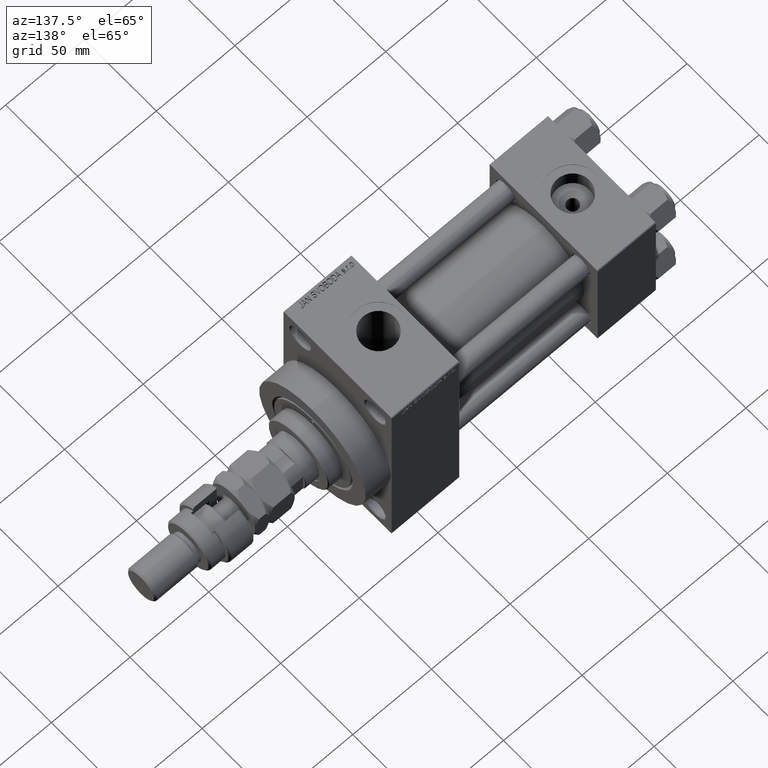
[diagram: clean part render]
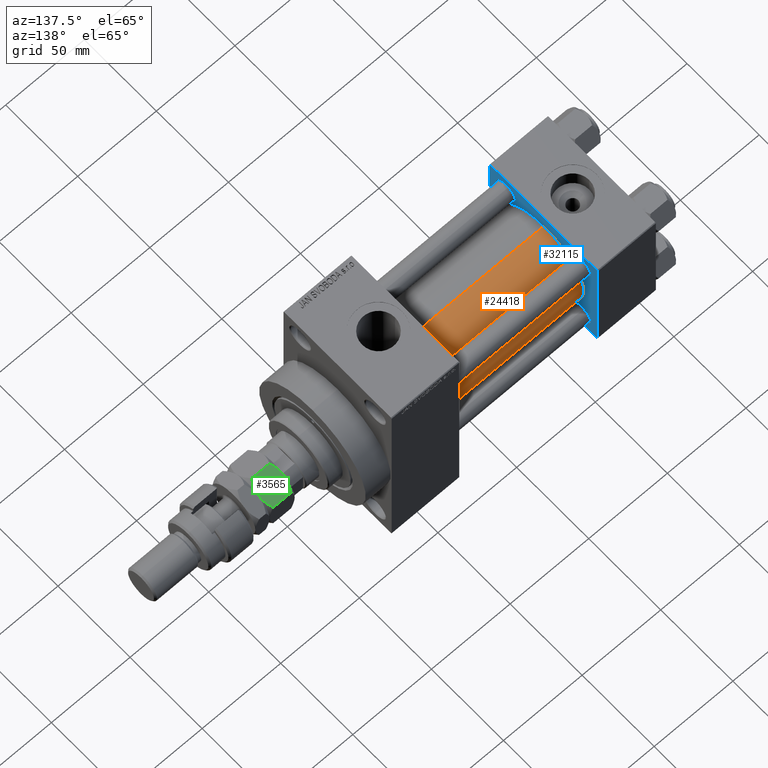
[diagram: same view with three faces highlighted in distinct colors, each labeled with its STEP entity id]
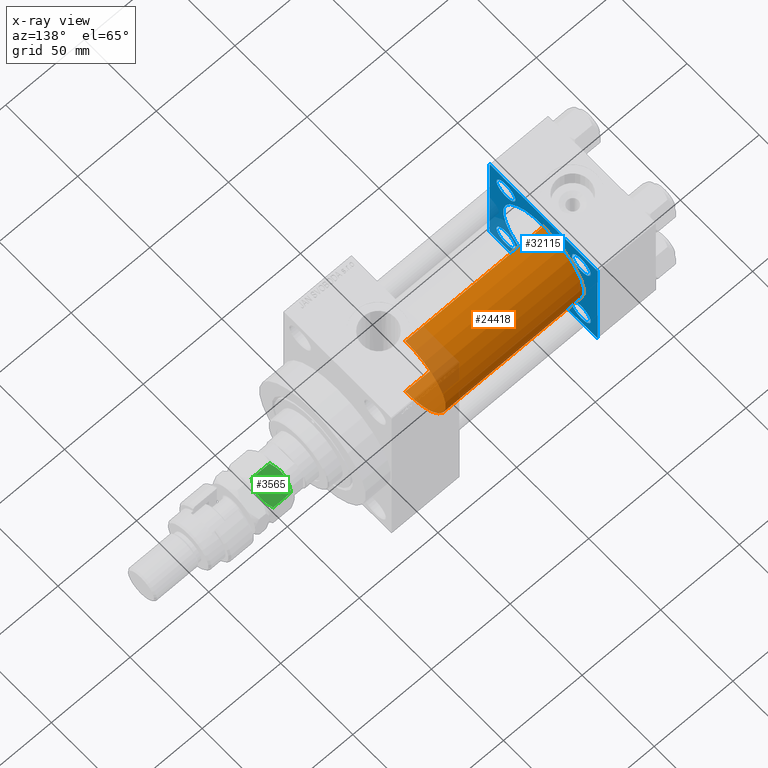
[diagram: x-ray of the same camera — body ghosted, the three highlighted faces saturated]
A machine part, auxiliary view with three faces highlighted in distinct colors.
The next image is the same camera in x-ray (body ghosted, the three faces saturated) — at least one of them is partly hidden behind the body in this view.
Their STEP definitions:

[orange] entity #24418 — the highlighted cylindrical surface (partial cylindrical patch) has radius 28 mm, axis along (-1, -0, -0).
#183 = AXIS2_PLACEMENT_3D ( 'NONE', #34662, #16320, #31587 ) ;
#1959 = EDGE_CURVE ( 'NONE', #23058, #6638, #30447, .T. ) ;
#2136 = VERTEX_POINT ( 'NONE', #24434 ) ;
#2477 = CARTESIAN_POINT ( 'NONE',  ( 37.00000000000000711, 8.269258236473784371E-16, -28.00000000000000000 ) ) ;
#2872 = DIRECTION ( 'NONE',  ( 0.000000000000000000, 0.000000000000000000, 1.000000000000000000 ) ) ;
#4397 = LINE ( 'NONE', #27033, #18025 ) ;
#5605 = ORIENTED_EDGE ( 'NONE', *, *, #42466, .F. ) ;
#5900 = CYLINDRICAL_SURFACE ( 'NONE', #15718, 28.00000000000000000 ) ;
#6194 = EDGE_LOOP ( 'NONE', ( #5605, #32483, #37358, #13867 ) ) ;
#6638 = VERTEX_POINT ( 'NONE', #44035 ) ;
#11540 = CARTESIAN_POINT ( 'NONE',  ( 125.0000000000000000, 8.269258236473784371E-16, -28.00000000000000000 ) ) ;
#11629 = VECTOR ( 'NONE', #37035, 1000.000000000000000 ) ;
#13272 = FACE_OUTER_BOUND ( 'NONE', #6194, .T. ) ;
#13867 = ORIENTED_EDGE ( 'NONE', *, *, #23021, .F. ) ;
#15589 = DIRECTION ( 'NONE',  ( -1.000000000000000000, -0.000000000000000000, -0.000000000000000000 ) ) ;
#15718 = AXIS2_PLACEMENT_3D ( 'NONE', #36909, #33350, #2872 ) ;
#15808 = AXIS2_PLACEMENT_3D ( 'NONE', #48891, #29318, #36946 ) ;
#16320 = DIRECTION ( 'NONE',  ( 1.000000000000000000, 0.000000000000000000, 0.000000000000000000 ) ) ;
#18025 = VECTOR ( 'NONE', #15589, 1000.000000000000000 ) ;
#23021 = EDGE_CURVE ( 'NONE', #2136, #6638, #37787, .T. ) ;
#23058 = VERTEX_POINT ( 'NONE', #2477 ) ;
#23381 = VERTEX_POINT ( 'NONE', #11540 ) ;
#24418 = ADVANCED_FACE ( 'NONE', ( #13272 ), #5900, .T. ) ;
#24434 = CARTESIAN_POINT ( 'NONE',  ( 125.0000000000000000, -2.602085213965210642E-15, 28.00000000000000000 ) ) ;
#26947 = CIRCLE ( 'NONE', #183, 28.00000000000000000 ) ;
#27033 = CARTESIAN_POINT ( 'NONE',  ( 125.0000000000000000, 8.269258236473784371E-16, -28.00000000000000000 ) ) ;
#29318 = DIRECTION ( 'NONE',  ( 1.000000000000000000, -0.000000000000000000, 0.000000000000000000 ) ) ;
#30447 = CIRCLE ( 'NONE', #15808, 28.00000000000000000 ) ;
#31587 = DIRECTION ( 'NONE',  ( 0.000000000000000000, 0.000000000000000000, -1.000000000000000000 ) ) ;
#32483 = ORIENTED_EDGE ( 'NONE', *, *, #42471, .T. ) ;
#33350 = DIRECTION ( 'NONE',  ( -1.000000000000000000, -0.000000000000000000, -0.000000000000000000 ) ) ;
#34662 = CARTESIAN_POINT ( 'NONE',  ( 125.0000000000000000, -2.602085213965210642E-15, 0.000000000000000000 ) ) ;
#36909 = CARTESIAN_POINT ( 'NONE',  ( 125.0000000000000000, -2.602085213965210642E-15, 0.000000000000000000 ) ) ;
#36946 = DIRECTION ( 'NONE',  ( 0.000000000000000000, 0.000000000000000000, 1.000000000000000000 ) ) ;
#37035 = DIRECTION ( 'NONE',  ( -1.000000000000000000, -0.000000000000000000, -0.000000000000000000 ) ) ;
#37358 = ORIENTED_EDGE ( 'NONE', *, *, #1959, .T. ) ;
#37787 = LINE ( 'NONE', #40583, #11629 ) ;
#40583 = CARTESIAN_POINT ( 'NONE',  ( 125.0000000000000000, -2.602085213965210642E-15, 28.00000000000000000 ) ) ;
#42466 = EDGE_CURVE ( 'NONE', #23381, #2136, #26947, .T. ) ;
#42471 = EDGE_CURVE ( 'NONE', #23381, #23058, #4397, .T. ) ;
#44035 = CARTESIAN_POINT ( 'NONE',  ( 37.00000000000000711, -2.602085213965210642E-15, 28.00000000000000000 ) ) ;
#48891 = CARTESIAN_POINT ( 'NONE',  ( 37.00000000000000711, -2.602085213965210642E-15, 0.000000000000000000 ) ) ;

[blue] entity #32115 — the highlighted planar face has unit normal (-1, 0, 0).
#347 = ORIENTED_EDGE ( 'NONE', *, *, #893, .T. ) ;
#371 = CARTESIAN_POINT ( 'NONE',  ( 37.00000000000000000, 26.14999999999999858, 26.15000000000000213 ) ) ;
#501 = DIRECTION ( 'NONE',  ( -1.000000000000000000, 0.000000000000000000, -0.000000000000000000 ) ) ;
#586 = CIRCLE ( 'NONE', #4596, 6.500000000000037303 ) ;
#619 = DIRECTION ( 'NONE',  ( 0.000000000000000000, 0.000000000000000000, 1.000000000000000000 ) ) ;
#636 = CARTESIAN_POINT ( 'NONE',  ( 37.00000000000000000, -37.50000000000000711, 37.49999999999999289 ) ) ;
#746 = ORIENTED_EDGE ( 'NONE', *, *, #15819, .T. ) ;
#851 = CIRCLE ( 'NONE', #40601, 6.500000000000037303 ) ;
#884 = VERTEX_POINT ( 'NONE', #42570 ) ;
#893 = EDGE_CURVE ( 'NONE', #29386, #48803, #6013, .T. ) ;
#1724 = EDGE_CURVE ( 'NONE', #18747, #27162, #10967, .T. ) ;
#1803 = CIRCLE ( 'NONE', #39902, 6.499999999999981348 ) ;
#1959 = EDGE_CURVE ( 'NONE', #23058, #6638, #30447, .T. ) ;
#2045 = ORIENTED_EDGE ( 'NONE', *, *, #18340, .F. ) ;
#2249 = VERTEX_POINT ( 'NONE', #37648 ) ;
#2477 = CARTESIAN_POINT ( 'NONE',  ( 37.00000000000000711, 8.269258236473784371E-16, -28.00000000000000000 ) ) ;
#2655 = VECTOR ( 'NONE', #7207, 1000.000000000000114 ) ;
#2966 = CARTESIAN_POINT ( 'NONE',  ( 37.00000000000000000, -26.14999999999999147, 26.15000000000000924 ) ) ;
#3449 = CARTESIAN_POINT ( 'NONE',  ( 37.00000000000000000, 26.14999999999999858, -32.65000000000003411 ) ) ;
#3866 = EDGE_CURVE ( 'NONE', #29584, #23281, #38987, .T. ) ;
#3904 = LINE ( 'NONE', #39183, #2655 ) ;
#4054 = CARTESIAN_POINT ( 'NONE',  ( 37.00000000000000000, -37.50000000000000711, 36.99999999999999289 ) ) ;
#4465 = CIRCLE ( 'NONE', #19882, 6.499999999999974243 ) ;
#4596 = AXIS2_PLACEMENT_3D ( 'NONE', #371, #38739, #619 ) ;
#5047 = AXIS2_PLACEMENT_3D ( 'NONE', #9945, #10205, #45281 ) ;
#5052 = EDGE_LOOP ( 'NONE', ( #25933, #42942 ) ) ;
#5864 = CARTESIAN_POINT ( 'NONE',  ( 37.00000000000000000, 0.000000000000000000, 0.000000000000000000 ) ) ;
#6013 = CIRCLE ( 'NONE', #37690, 6.499999999999981348 ) ;
#6638 = VERTEX_POINT ( 'NONE', #44035 ) ;
#7207 = DIRECTION ( 'NONE',  ( -0.000000000000000000, -0.7071067811865474617, -0.7071067811865474617 ) ) ;
#7870 = CARTESIAN_POINT ( 'NONE',  ( 37.00000000000000000, 37.49999999999999289, -36.99999999999998579 ) ) ;
#7972 = DIRECTION ( 'NONE',  ( 0.000000000000000000, 0.000000000000000000, 1.000000000000000000 ) ) ;
#8841 = CARTESIAN_POINT ( 'NONE',  ( 37.00000000000000000, -26.14999999999999147, -26.15000000000000924 ) ) ;
#9407 = EDGE_LOOP ( 'NONE', ( #37382, #28806 ) ) ;
#9521 = CARTESIAN_POINT ( 'NONE',  ( 37.00000000000000711, -2.602085213965210642E-15, 0.000000000000000000 ) ) ;
#9662 = ORIENTED_EDGE ( 'NONE', *, *, #46042, .F. ) ;
#9845 = CARTESIAN_POINT ( 'NONE',  ( 37.00000000000000000, 36.99999999999999289, 37.50000000000000000 ) ) ;
#9945 = CARTESIAN_POINT ( 'NONE',  ( 37.00000000000000000, 26.14999999999999858, -26.15000000000000213 ) ) ;
#10018 = CARTESIAN_POINT ( 'NONE',  ( 37.00000000000000000, -37.50000000000000000, -37.00000000000003553 ) ) ;
#10129 = LINE ( 'NONE', #21828, #19644 ) ;
#10183 = LINE ( 'NONE', #10439, #11053 ) ;
#10205 = DIRECTION ( 'NONE',  ( -1.000000000000000000, 0.000000000000000000, -0.000000000000000000 ) ) ;
#10439 = CARTESIAN_POINT ( 'NONE',  ( 37.00000000000000000, 37.49999999999999289, -36.99999999999998579 ) ) ;
#10681 = EDGE_CURVE ( 'NONE', #884, #23497, #586, .T. ) ;
#10690 = VECTOR ( 'NONE', #42277, 1000.000000000000000 ) ;
#10967 = CIRCLE ( 'NONE', #42591, 6.500000000000030198 ) ;
#11053 = VECTOR ( 'NONE', #25931, 1000.000000000000114 ) ;
#11573 = DIRECTION ( 'NONE',  ( -1.000000000000000000, 0.000000000000000000, -0.000000000000000000 ) ) ;
#12269 = CARTESIAN_POINT ( 'NONE',  ( 37.00000000000000000, 26.14999999999999858, 32.65000000000004121 ) ) ;
#12364 = EDGE_CURVE ( 'NONE', #23281, #2249, #34735, .T. ) ;
#13422 = EDGE_CURVE ( 'NONE', #23497, #884, #851, .T. ) ;
#13756 = FACE_BOUND ( 'NONE', #44221, .T. ) ;
#14373 = DIRECTION ( 'NONE',  ( 0.000000000000000000, 0.000000000000000000, 1.000000000000000000 ) ) ;
#14420 = EDGE_CURVE ( 'NONE', #24216, #31775, #25216, .T. ) ;
#14833 = CARTESIAN_POINT ( 'NONE',  ( 37.00000000000000000, 37.49999999999999289, 37.50000000000000000 ) ) ;
#15623 = CIRCLE ( 'NONE', #5047, 6.500000000000030198 ) ;
#15808 = AXIS2_PLACEMENT_3D ( 'NONE', #48891, #29318, #36946 ) ;
#15819 = EDGE_CURVE ( 'NONE', #29884, #35249, #46109, .T. ) ;
#16393 = CARTESIAN_POINT ( 'NONE',  ( 37.00000000000000000, 36.99999999999997868, -37.50000000000000000 ) ) ;
#16792 = EDGE_LOOP ( 'NONE', ( #48004, #48773 ) ) ;
#16810 = DIRECTION ( 'NONE',  ( -0.000000000000000000, 0.000000000000000000, 1.000000000000000000 ) ) ;
#17302 = FACE_BOUND ( 'NONE', #9407, .T. ) ;
#17444 = CARTESIAN_POINT ( 'NONE',  ( 37.00000000000000000, 26.14999999999999858, -26.15000000000000213 ) ) ;
#17528 = VECTOR ( 'NONE', #23741, 1000.000000000000000 ) ;
#17574 = FACE_BOUND ( 'NONE', #5052, .T. ) ;
#17749 = ORIENTED_EDGE ( 'NONE', *, *, #47474, .F. ) ;
#18340 = EDGE_CURVE ( 'NONE', #30233, #37943, #39355, .T. ) ;
#18747 = VERTEX_POINT ( 'NONE', #27610 ) ;
#19644 = VECTOR ( 'NONE', #33253, 1000.000000000000114 ) ;
#19882 = AXIS2_PLACEMENT_3D ( 'NONE', #8841, #501, #23605 ) ;
#19906 = EDGE_CURVE ( 'NONE', #30233, #29884, #10129, .T. ) ;
#20352 = AXIS2_PLACEMENT_3D ( 'NONE', #22074, #33249, #40869 ) ;
#21828 = CARTESIAN_POINT ( 'NONE',  ( 37.00000000000000000, 36.99999999999999289, 37.50000000000000000 ) ) ;
#22074 = CARTESIAN_POINT ( 'NONE',  ( 37.00000000000000000, -26.14999999999999147, -26.15000000000000924 ) ) ;
#23020 = DIRECTION ( 'NONE',  ( 0.000000000000000000, 0.000000000000000000, 1.000000000000000000 ) ) ;
#23058 = VERTEX_POINT ( 'NONE', #2477 ) ;
#23281 = VERTEX_POINT ( 'NONE', #10018 ) ;
#23476 = CARTESIAN_POINT ( 'NONE',  ( 37.00000000000000000, -26.14999999999999147, -32.64999999999998437 ) ) ;
#23497 = VERTEX_POINT ( 'NONE', #12269 ) ;
#23605 = DIRECTION ( 'NONE',  ( 0.000000000000000000, 0.000000000000000000, 1.000000000000000000 ) ) ;
#23736 = CIRCLE ( 'NONE', #44821, 28.00000000000000000 ) ;
#23741 = DIRECTION ( 'NONE',  ( 0.000000000000000000, 9.251858538542971581E-17, -1.000000000000000000 ) ) ;
#24159 = ORIENTED_EDGE ( 'NONE', *, *, #42400, .T. ) ;
#24216 = VERTEX_POINT ( 'NONE', #23476 ) ;
#24355 = ORIENTED_EDGE ( 'NONE', *, *, #43174, .T. ) ;
#25216 = CIRCLE ( 'NONE', #20352, 6.499999999999974243 ) ;
#25446 = VECTOR ( 'NONE', #31542, 1000.000000000000000 ) ;
#25525 = DIRECTION ( 'NONE',  ( 1.000000000000000000, -0.000000000000000000, 0.000000000000000000 ) ) ;
#25931 = DIRECTION ( 'NONE',  ( -0.000000000000000000, 0.7071067811865474617, 0.7071067811865474617 ) ) ;
#25933 = ORIENTED_EDGE ( 'NONE', *, *, #43405, .T. ) ;
#27162 = VERTEX_POINT ( 'NONE', #3449 ) ;
#27610 = CARTESIAN_POINT ( 'NONE',  ( 37.00000000000000000, 26.14999999999999858, -19.64999999999997371 ) ) ;
#27933 = EDGE_LOOP ( 'NONE', ( #9662, #32787 ) ) ;
#28484 = DIRECTION ( 'NONE',  ( -1.000000000000000000, 0.000000000000000000, -0.000000000000000000 ) ) ;
#28574 = DIRECTION ( 'NONE',  ( 0.000000000000000000, 0.000000000000000000, 1.000000000000000000 ) ) ;
#28742 = FACE_BOUND ( 'NONE', #16792, .T. ) ;
#28806 = ORIENTED_EDGE ( 'NONE', *, *, #29735, .T. ) ;
#29254 = PLANE ( 'NONE',  #38649 ) ;
#29318 = DIRECTION ( 'NONE',  ( 1.000000000000000000, -0.000000000000000000, 0.000000000000000000 ) ) ;
#29386 = VERTEX_POINT ( 'NONE', #38478 ) ;
#29584 = VERTEX_POINT ( 'NONE', #4054 ) ;
#29735 = EDGE_CURVE ( 'NONE', #31775, #24216, #4465, .T. ) ;
#29739 = ORIENTED_EDGE ( 'NONE', *, *, #3866, .T. ) ;
#29884 = VERTEX_POINT ( 'NONE', #9845 ) ;
#30233 = VERTEX_POINT ( 'NONE', #40535 ) ;
#30447 = CIRCLE ( 'NONE', #15808, 28.00000000000000000 ) ;
#31175 = DIRECTION ( 'NONE',  ( 0.000000000000000000, 0.7071067811865524577, -0.7071067811865426878 ) ) ;
#31445 = EDGE_CURVE ( 'NONE', #37138, #37943, #10183, .T. ) ;
#31542 = DIRECTION ( 'NONE',  ( 0.000000000000000000, -1.000000000000000000, -9.251858538542972814E-17 ) ) ;
#31775 = VERTEX_POINT ( 'NONE', #31858 ) ;
#31783 = CARTESIAN_POINT ( 'NONE',  ( 37.00000000000000000, 37.49999999999999289, -37.50000000000000000 ) ) ;
#31858 = CARTESIAN_POINT ( 'NONE',  ( 37.00000000000000000, -26.14999999999999147, -19.65000000000003411 ) ) ;
#32115 = ADVANCED_FACE ( 'NONE', ( #17302, #17574, #13756, #28742, #36615, #48316 ), #29254, .F. ) ;
#32787 = ORIENTED_EDGE ( 'NONE', *, *, #1959, .F. ) ;
#33249 = DIRECTION ( 'NONE',  ( -1.000000000000000000, 0.000000000000000000, -0.000000000000000000 ) ) ;
#33253 = DIRECTION ( 'NONE',  ( 0.000000000000000000, -0.7071067811865474617, 0.7071067811865474617 ) ) ;
#33647 = CARTESIAN_POINT ( 'NONE',  ( 37.00000000000000000, -26.14999999999999147, 26.15000000000000924 ) ) ;
#33788 = ORIENTED_EDGE ( 'NONE', *, *, #12364, .T. ) ;
#34735 = LINE ( 'NONE', #46430, #45282 ) ;
#35017 = ORIENTED_EDGE ( 'NONE', *, *, #19906, .T. ) ;
#35048 = DIRECTION ( 'NONE',  ( 0.000000000000000000, 0.000000000000000000, -1.000000000000000000 ) ) ;
#35249 = VERTEX_POINT ( 'NONE', #50058 ) ;
#35399 = DIRECTION ( 'NONE',  ( -1.000000000000000000, 0.000000000000000000, -0.000000000000000000 ) ) ;
#35543 = CARTESIAN_POINT ( 'NONE',  ( 37.00000000000000000, 37.49999999999999289, 37.50000000000000000 ) ) ;
#36615 = FACE_BOUND ( 'NONE', #27933, .T. ) ;
#36747 = DIRECTION ( 'NONE',  ( 0.000000000000000000, 0.000000000000000000, 1.000000000000000000 ) ) ;
#36946 = DIRECTION ( 'NONE',  ( 0.000000000000000000, 0.000000000000000000, 1.000000000000000000 ) ) ;
#37138 = VERTEX_POINT ( 'NONE', #16393 ) ;
#37261 = DIRECTION ( 'NONE',  ( -1.000000000000000000, 0.000000000000000000, -0.000000000000000000 ) ) ;
#37382 = ORIENTED_EDGE ( 'NONE', *, *, #14420, .T. ) ;
#37648 = CARTESIAN_POINT ( 'NONE',  ( 37.00000000000000000, -37.00000000000002132, -37.50000000000000711 ) ) ;
#37690 = AXIS2_PLACEMENT_3D ( 'NONE', #2966, #11573, #23020 ) ;
#37943 = VERTEX_POINT ( 'NONE', #7870 ) ;
#38478 = CARTESIAN_POINT ( 'NONE',  ( 37.00000000000000000, -26.14999999999999147, 19.65000000000002700 ) ) ;
#38649 = AXIS2_PLACEMENT_3D ( 'NONE', #5864, #28484, #16810 ) ;
#38739 = DIRECTION ( 'NONE',  ( -1.000000000000000000, 0.000000000000000000, -0.000000000000000000 ) ) ;
#38987 = LINE ( 'NONE', #636, #17528 ) ;
#39183 = CARTESIAN_POINT ( 'NONE',  ( 37.00000000000000000, -37.50000000000000711, 36.99999999999999289 ) ) ;
#39355 = LINE ( 'NONE', #35543, #44706 ) ;
#39644 = LINE ( 'NONE', #31783, #25446 ) ;
#39902 = AXIS2_PLACEMENT_3D ( 'NONE', #33647, #35399, #7972 ) ;
#40535 = CARTESIAN_POINT ( 'NONE',  ( 37.00000000000000000, 37.49999999999999289, 37.00000000000000000 ) ) ;
#40601 = AXIS2_PLACEMENT_3D ( 'NONE', #49194, #41807, #14373 ) ;
#40869 = DIRECTION ( 'NONE',  ( 0.000000000000000000, 0.000000000000000000, 1.000000000000000000 ) ) ;
#41807 = DIRECTION ( 'NONE',  ( -1.000000000000000000, 0.000000000000000000, -0.000000000000000000 ) ) ;
#42277 = DIRECTION ( 'NONE',  ( 0.000000000000000000, -1.000000000000000000, -9.251858538542971581E-17 ) ) ;
#42400 = EDGE_CURVE ( 'NONE', #48803, #29386, #1803, .T. ) ;
#42570 = CARTESIAN_POINT ( 'NONE',  ( 37.00000000000000000, 26.14999999999999858, 19.64999999999997016 ) ) ;
#42591 = AXIS2_PLACEMENT_3D ( 'NONE', #17444, #37261, #36747 ) ;
#42942 = ORIENTED_EDGE ( 'NONE', *, *, #1724, .T. ) ;
#43174 = EDGE_CURVE ( 'NONE', #35249, #29584, #3904, .T. ) ;
#43405 = EDGE_CURVE ( 'NONE', #27162, #18747, #15623, .T. ) ;
#44035 = CARTESIAN_POINT ( 'NONE',  ( 37.00000000000000711, -2.602085213965210642E-15, 28.00000000000000000 ) ) ;
#44221 = EDGE_LOOP ( 'NONE', ( #347, #24159 ) ) ;
#44401 = ORIENTED_EDGE ( 'NONE', *, *, #31445, .T. ) ;
#44675 = CARTESIAN_POINT ( 'NONE',  ( 37.00000000000000000, -26.14999999999999147, 32.64999999999999147 ) ) ;
#44706 = VECTOR ( 'NONE', #35048, 1000.000000000000000 ) ;
#44821 = AXIS2_PLACEMENT_3D ( 'NONE', #9521, #25525, #28574 ) ;
#45281 = DIRECTION ( 'NONE',  ( 0.000000000000000000, 0.000000000000000000, 1.000000000000000000 ) ) ;
#45282 = VECTOR ( 'NONE', #31175, 1000.000000000000000 ) ;
#46042 = EDGE_CURVE ( 'NONE', #6638, #23058, #23736, .T. ) ;
#46109 = LINE ( 'NONE', #14833, #10690 ) ;
#46430 = CARTESIAN_POINT ( 'NONE',  ( 37.00000000000000000, -37.00000000000002132, -37.50000000000000711 ) ) ;
#46754 = EDGE_LOOP ( 'NONE', ( #17749, #44401, #2045, #35017, #746, #24355, #29739, #33788 ) ) ;
#47474 = EDGE_CURVE ( 'NONE', #37138, #2249, #39644, .T. ) ;
#48004 = ORIENTED_EDGE ( 'NONE', *, *, #10681, .T. ) ;
#48316 = FACE_OUTER_BOUND ( 'NONE', #46754, .T. ) ;
#48773 = ORIENTED_EDGE ( 'NONE', *, *, #13422, .T. ) ;
#48803 = VERTEX_POINT ( 'NONE', #44675 ) ;
#48891 = CARTESIAN_POINT ( 'NONE',  ( 37.00000000000000711, -2.602085213965210642E-15, 0.000000000000000000 ) ) ;
#49194 = CARTESIAN_POINT ( 'NONE',  ( 37.00000000000000000, 26.14999999999999858, 26.15000000000000213 ) ) ;
#50058 = CARTESIAN_POINT ( 'NONE',  ( 37.00000000000000000, -37.00000000000000711, 37.49999999999999289 ) ) ;

[green] entity #3565 — the highlighted planar face has unit normal (0, -0.5, -0.866).
#239 = VERTEX_POINT ( 'NONE', #30980 ) ;
#890 = CARTESIAN_POINT ( 'NONE',  ( -15.00000000000000000, 1.890862710942016633, 0.1142538058331583339 ) ) ;
#1355 = CARTESIAN_POINT ( 'NONE',  ( -14.99999999999999467, -5.176035048062463062, 0.8528038385778453634 ) ) ;
#1639 = CARTESIAN_POINT ( 'NONE',  ( -15.00000000000000178, 1.516896874073655255, 0.07181722323989069012 ) ) ;
#2807 = ORIENTED_EDGE ( 'NONE', *, *, #17271, .F. ) ;
#3288 = ORIENTED_EDGE ( 'NONE', *, *, #21286, .F. ) ;
#3313 = CARTESIAN_POINT ( 'NONE',  ( -15.00000000000000000, 3.008020699068715054, 15.76423971609371222 ) ) ;
#3565 = ADVANCED_FACE ( 'NONE', ( #6308 ), #14185, .F. ) ;
#4700 = CARTESIAN_POINT ( 'NONE',  ( -15.00000000000000000, 8.660254037844394404, 2.320508075688769711 ) ) ;
#5185 = CARTESIAN_POINT ( 'NONE',  ( -15.00000000000000000, 8.660254037844394404, 2.320508075688769711 ) ) ;
#6308 = FACE_OUTER_BOUND ( 'NONE', #37232, .T. ) ;
#8465 = CARTESIAN_POINT ( 'NONE',  ( -14.99999999999999112, -5.891877557735397453, 1.102734500939527518 ) ) ;
#9629 = CARTESIAN_POINT ( 'NONE',  ( -14.99999999999999645, -8.660254037844389075, 2.320508075688762606 ) ) ;
#10341 = CARTESIAN_POINT ( 'NONE',  ( -14.99999999999999645, -3.004330627448763114, 15.71971113554880972 ) ) ;
#10844 = CARTESIAN_POINT ( 'NONE',  ( -14.99999999999999822, -1.890862710942014857, 15.88574619416684541 ) ) ;
#11808 = B_SPLINE_CURVE_WITH_KNOTS ( 'NONE', 3,
 ( #27776, #43273, #20655, #8465, #1355, #35642, #16844, #19665 ),
 .UNSPECIFIED., .F., .F.,
 ( 4, 2, 2, 4 ),
 ( 0.02387628527307378290, 0.02613482112973649144, 0.02839335698639919997, 0.03291042869972461704 ),
 .UNSPECIFIED. ) ;
#12346 = CARTESIAN_POINT ( 'NONE',  ( -15.00000000000000178, 7.301344312447437979, 14.32986304731390526 ) ) ;
#14185 = PLANE ( 'NONE',  #36106 ) ;
#15380 = DIRECTION ( 'NONE',  ( -0.000000000000000000, -0.000000000000000000, -1.000000000000000000 ) ) ;
#16844 = CARTESIAN_POINT ( 'NONE',  ( -15.00000000000000355, -1.527574731641586192, -3.659182332138578254E-15 ) ) ;
#17128 = CARTESIAN_POINT ( 'NONE',  ( -14.99999999999999822, 5.890999289811424511, 1.102415080315420015 ) ) ;
#17204 = DIRECTION ( 'NONE',  ( -0.000000000000000000, -0.000000000000000000, -1.000000000000000000 ) ) ;
#17271 = EDGE_CURVE ( 'NONE', #47615, #37582, #46982, .T. ) ;
#18220 = CARTESIAN_POINT ( 'NONE',  ( -14.99999999999999822, -1.516896874073658807, 15.92818277676011007 ) ) ;
#18487 = CARTESIAN_POINT ( 'NONE',  ( -14.99999999999999645, -3.004629197474316485E-15, 16.00000000000000000 ) ) ;
#18569 = CARTESIAN_POINT ( 'NONE',  ( -15.00000000000000000, 8.660254037844392627, 13.67949192431123429 ) ) ;
#18726 = CARTESIAN_POINT ( 'NONE',  ( -14.99999999999999645, -8.660254037844389075, 13.67949192431124139 ) ) ;
#18763 = CARTESIAN_POINT ( 'NONE',  ( -15.00000000000000000, 8.660254037844392627, 16.00000000000000000 ) ) ;
#19665 = CARTESIAN_POINT ( 'NONE',  ( -15.00000000000000000, -3.004629197474317274E-15, 0.000000000000000000 ) ) ;
#20177 = LINE ( 'NONE', #50214, #27221 ) ;
#20198 = CARTESIAN_POINT ( 'NONE',  ( -14.99999999999999645, 7.987879721624096874, 1.984320917578621835 ) ) ;
#20655 = CARTESIAN_POINT ( 'NONE',  ( -14.99999999999999645, -7.301344312447434426, 1.670136952686098741 ) ) ;
#21093 = EDGE_CURVE ( 'NONE', #37582, #239, #37661, .T. ) ;
#21286 = EDGE_CURVE ( 'NONE', #31348, #21301, #32785, .T. ) ;
#21301 = VERTEX_POINT ( 'NONE', #4700 ) ;
#23126 = CARTESIAN_POINT ( 'NONE',  ( -15.00000000000000000, 5.176035048062466615, 15.14719616142215308 ) ) ;
#25838 = CARTESIAN_POINT ( 'NONE',  ( -14.99999999999999645, -3.735400403320779272, 15.55737490054933936 ) ) ;
#26115 = DIRECTION ( 'NONE',  ( -2.003086131649544964E-16, 1.000000000000000000, 0.000000000000000000 ) ) ;
#26171 = VECTOR ( 'NONE', #17204, 1000.000000000000000 ) ;
#27221 = VECTOR ( 'NONE', #15380, 1000.000000000000000 ) ;
#27267 = EDGE_CURVE ( 'NONE', #239, #40708, #20177, .T. ) ;
#27776 = CARTESIAN_POINT ( 'NONE',  ( -14.99999999999999645, -8.660254037844389075, 2.320508075688762606 ) ) ;
#27816 = CARTESIAN_POINT ( 'NONE',  ( -15.00000000000000000, 5.178726290334382476, 0.8537269996444443176 ) ) ;
#27909 = ORIENTED_EDGE ( 'NONE', *, *, #37455, .F. ) ;
#28344 = CARTESIAN_POINT ( 'NONE',  ( -14.99999999999999645, -3.004629197474316485E-15, 16.00000000000000000 ) ) ;
#30506 = ORIENTED_EDGE ( 'NONE', *, *, #21093, .F. ) ;
#30980 = CARTESIAN_POINT ( 'NONE',  ( -14.99999999999999645, -8.660254037844389075, 13.67949192431124139 ) ) ;
#31348 = VERTEX_POINT ( 'NONE', #44236 ) ;
#32162 = CARTESIAN_POINT ( 'NONE',  ( -15.00000000000000000, 1.527574731641582639, 16.00000000000000711 ) ) ;
#32785 = B_SPLINE_CURVE_WITH_KNOTS ( 'NONE', 3,
 ( #36440, #47876, #32892, #1639, #890, #44059, #36692, #27816, #17128, #35926, #20198, #5185 ),
 .UNSPECIFIED., .F., .F.,
 ( 4, 2, 2, 2, 2, 4 ),
 ( 0.03291042869972461704, 0.03403908204310903546, 0.03516773538649344694, 0.03742504207326227683, 0.03968234876003110673, 0.04193965544679993662 ),
 .UNSPECIFIED. ) ;
#32892 = CARTESIAN_POINT ( 'NONE',  ( -14.99999999999999822, 0.7629267201675393739, 0.01468466084192471960 ) ) ;
#33960 = CARTESIAN_POINT ( 'NONE',  ( -14.99999999999999822, -5.178726290334378035, 15.14627300035556345 ) ) ;
#34243 = DIRECTION ( 'NONE',  ( 1.000000000000000000, 2.003086131649544964E-16, -0.000000000000000000 ) ) ;
#35567 = ORIENTED_EDGE ( 'NONE', *, *, #45239, .T. ) ;
#35642 = CARTESIAN_POINT ( 'NONE',  ( -14.99999999999999645, -3.008020699068712389, 0.2357602839062925004 ) ) ;
#35926 = CARTESIAN_POINT ( 'NONE',  ( -14.99999999999999822, 7.300329060372334311, 1.669694153640834955 ) ) ;
#35959 = CARTESIAN_POINT ( 'NONE',  ( -15.00000000000000000, 8.660254037844392627, 13.67949192431123429 ) ) ;
#36106 = AXIS2_PLACEMENT_3D ( 'NONE', #18763, #34243, #26115 ) ;
#36440 = CARTESIAN_POINT ( 'NONE',  ( -15.00000000000000000, -3.004629197474317274E-15, 0.000000000000000000 ) ) ;
#36692 = CARTESIAN_POINT ( 'NONE',  ( -15.00000000000000000, 3.735400403320778828, 0.4426250994506696901 ) ) ;
#37232 = EDGE_LOOP ( 'NONE', ( #27909, #45458, #30506, #2807, #35567, #3288 ) ) ;
#37280 = LINE ( 'NONE', #48209, #26171 ) ;
#37455 = EDGE_CURVE ( 'NONE', #40708, #31348, #11808, .T. ) ;
#37520 = CARTESIAN_POINT ( 'NONE',  ( -14.99999999999999822, -7.987879721624087992, 14.01567908242139282 ) ) ;
#37582 = VERTEX_POINT ( 'NONE', #49616 ) ;
#37661 = B_SPLINE_CURVE_WITH_KNOTS ( 'NONE', 3,
 ( #18487, #48969, #48715, #18220, #10844, #10341, #25838, #33960, #45921, #49475, #37520, #18726 ),
 .UNSPECIFIED., .F., .F.,
 ( 4, 2, 2, 2, 2, 4 ),
 ( 0.03291042869972462398, 0.03403908204310903546, 0.03516773538649344694, 0.03742504207326226989, 0.03968234876003109979, 0.04193965544679992274 ),
 .UNSPECIFIED. ) ;
#40708 = VERTEX_POINT ( 'NONE', #9629 ) ;
#43273 = CARTESIAN_POINT ( 'NONE',  ( -14.99999999999999645, -7.987590979791842294, 1.984176546662486329 ) ) ;
#43340 = CARTESIAN_POINT ( 'NONE',  ( -14.99999999999999822, 5.891877557735400117, 14.89726549906047381 ) ) ;
#44059 = CARTESIAN_POINT ( 'NONE',  ( -15.00000000000000000, 3.004330627448767110, 0.2802888644511979388 ) ) ;
#44236 = CARTESIAN_POINT ( 'NONE',  ( -15.00000000000000000, -3.004629197474317274E-15, 0.000000000000000000 ) ) ;
#45239 = EDGE_CURVE ( 'NONE', #47615, #21301, #37280, .T. ) ;
#45458 = ORIENTED_EDGE ( 'NONE', *, *, #27267, .F. ) ;
#45921 = CARTESIAN_POINT ( 'NONE',  ( -14.99999999999999467, -5.890999289811420958, 14.89758491968458820 ) ) ;
#46982 = B_SPLINE_CURVE_WITH_KNOTS ( 'NONE', 3,
 ( #35959, #47169, #12346, #43340, #23126, #3313, #32162, #28344 ),
 .UNSPECIFIED., .F., .F.,
 ( 4, 2, 2, 4 ),
 ( 0.02387628527307378290, 0.02613482112973649490, 0.02839335698639920344, 0.03291042869972462398 ),
 .UNSPECIFIED. ) ;
#47169 = CARTESIAN_POINT ( 'NONE',  ( -15.00000000000000000, 7.987590979791845847, 14.01582345333751789 ) ) ;
#47615 = VERTEX_POINT ( 'NONE', #18569 ) ;
#47876 = CARTESIAN_POINT ( 'NONE',  ( -14.99999999999999822, 0.3816858437404692661, -3.491469808582225998E-15 ) ) ;
#48209 = CARTESIAN_POINT ( 'NONE',  ( -15.00000000000000000, 8.660254037844392627, 16.00000000000000000 ) ) ;
#48715 = CARTESIAN_POINT ( 'NONE',  ( -15.00000000000000000, -0.7629267201675442589, 15.98531533915807579 ) ) ;
#48969 = CARTESIAN_POINT ( 'NONE',  ( -15.00000000000000178, -0.3816858437404726523, 16.00000000000001066 ) ) ;
#49475 = CARTESIAN_POINT ( 'NONE',  ( -14.99999999999999645, -7.300329060372325429, 14.33030584635917393 ) ) ;
#49616 = CARTESIAN_POINT ( 'NONE',  ( -14.99999999999999645, -3.004629197474316485E-15, 16.00000000000000000 ) ) ;
#50214 = CARTESIAN_POINT ( 'NONE',  ( -14.99999999999999645, -8.660254037844389075, 16.00000000000000000 ) ) ;